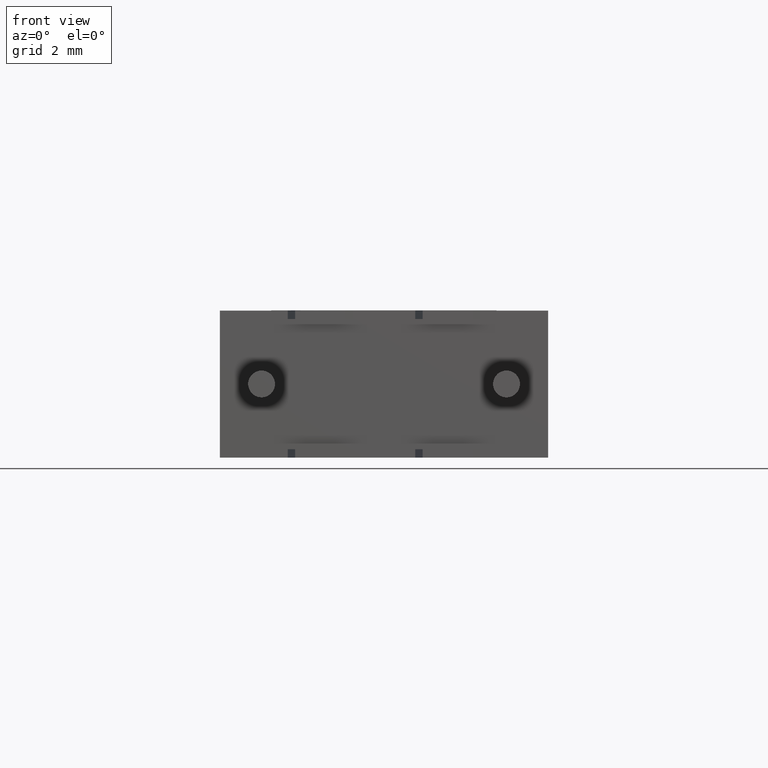
[diagram: clean part render]
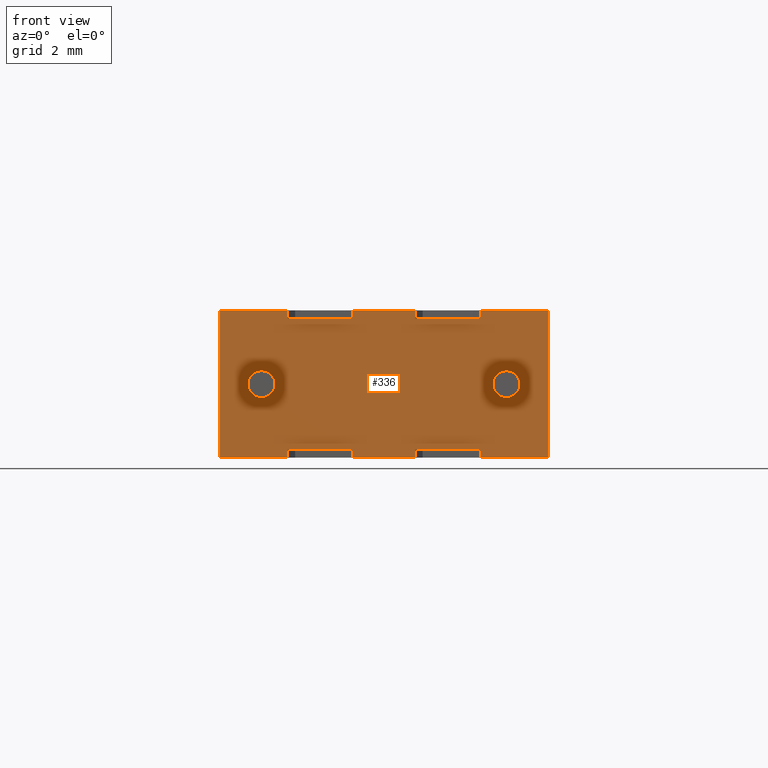
[diagram: same view with one face highlighted and labeled with its STEP entity id]
A machine part, front view. The second image highlights one B-rep face of the part: STEP entity #336.
In plain terms, the highlighted planar face has unit normal (0, 1, 0).
Its self-contained STEP definition (entity closure, byte-faithful):
#6 = EDGE_CURVE ( 'NONE', #809, #3175, #1949, .T. ) ;
#36 = VECTOR ( 'NONE', #2402, 1000.000000000000000 ) ;
#40 = PLANE ( 'NONE',  #1282 ) ;
#41 = CARTESIAN_POINT ( 'NONE',  ( 0.8499999999999996447, 0.000000000000000000, 1.499999999999999334 ) ) ;
#55 = ORIENTED_EDGE ( 'NONE', *, *, #831, .T. ) ;
#61 = EDGE_LOOP ( 'NONE', ( #1907, #3003 ) ) ;
#64 = CARTESIAN_POINT ( 'NONE',  ( 2.711099999999999621, 1.077689183249670778E-16, 3.000000000000000000 ) ) ;
#70 = FACE_BOUND ( 'NONE', #61, .T. ) ;
#71 = CARTESIAN_POINT ( 'NONE',  ( 1.386000000000000121, 0.000000000000000000, 0.1710000000000001519 ) ) ;
#84 = VECTOR ( 'NONE', #475, 1000.000000000000000 ) ;
#91 = ORIENTED_EDGE ( 'NONE', *, *, #2677, .T. ) ;
#104 = EDGE_CURVE ( 'NONE', #418, #2329, #3045, .T. ) ;
#128 = ORIENTED_EDGE ( 'NONE', *, *, #2525, .T. ) ;
#137 = VECTOR ( 'NONE', #2435, 1000.000000000000000 ) ;
#164 = CARTESIAN_POINT ( 'NONE',  ( 0.000000000000000000, 0.000000000000000000, 3.000000000000000000 ) ) ;
#172 = LINE ( 'NONE', #2167, #36 ) ;
#183 = ORIENTED_EDGE ( 'NONE', *, *, #739, .F. ) ;
#196 = ORIENTED_EDGE ( 'NONE', *, *, #6, .T. ) ;
#197 = VECTOR ( 'NONE', #2535, 1000.000000000000000 ) ;
#207 = CARTESIAN_POINT ( 'NONE',  ( 6.700000000000000178, 0.000000000000000000, 3.000000000000000000 ) ) ;
#210 = VECTOR ( 'NONE', #1781, 1000.000000000000000 ) ;
#220 = LINE ( 'NONE', #3182, #683 ) ;
#241 = CARTESIAN_POINT ( 'NONE',  ( 0.000000000000000000, 0.000000000000000000, 3.000000000000000000 ) ) ;
#253 = VERTEX_POINT ( 'NONE', #2258 ) ;
#276 = DIRECTION ( 'NONE',  ( 0.000000000000000000, -0.000000000000000000, 1.000000000000000000 ) ) ;
#277 = CARTESIAN_POINT ( 'NONE',  ( 1.386000000000000121, 8.486802318091154957E-17, 0.1710000000000000131 ) ) ;
#287 = CARTESIAN_POINT ( 'NONE',  ( 5.314000000000000057, 8.486802318091154957E-17, 2.828999999999999737 ) ) ;
#288 = EDGE_CURVE ( 'NONE', #2558, #2331, #2469, .T. ) ;
#297 = CARTESIAN_POINT ( 'NONE',  ( 5.314000000000000057, 8.486802318091154957E-17, 0.000000000000000000 ) ) ;
#310 = CARTESIAN_POINT ( 'NONE',  ( 3.988900000000000112, 1.077689183249670778E-16, 2.828999999999999737 ) ) ;
#311 = CARTESIAN_POINT ( 'NONE',  ( 2.711099999999999621, 1.077689183249670778E-16, 0.000000000000000000 ) ) ;
#315 = DIRECTION ( 'NONE',  ( 0.000000000000000000, 0.000000000000000000, 1.000000000000000000 ) ) ;
#324 = VECTOR ( 'NONE', #2252, 1000.000000000000000 ) ;
#331 = CARTESIAN_POINT ( 'NONE',  ( 3.988900000000000112, 1.077689183249670778E-16, 3.000000000000000000 ) ) ;
#336 = ADVANCED_FACE ( 'NONE', ( #2831, #1587, #70 ), #40, .F. ) ;
#337 = ORIENTED_EDGE ( 'NONE', *, *, #637, .T. ) ;
#355 = CARTESIAN_POINT ( 'NONE',  ( 5.314000000000000057, 0.000000000000000000, 0.1710000000000001519 ) ) ;
#360 = EDGE_LOOP ( 'NONE', ( #128, #389 ) ) ;
#365 = VECTOR ( 'NONE', #2995, 1000.000000000000000 ) ;
#367 = VECTOR ( 'NONE', #315, 1000.000000000000000 ) ;
#389 = ORIENTED_EDGE ( 'NONE', *, *, #1654, .T. ) ;
#418 = VERTEX_POINT ( 'NONE', #310 ) ;
#451 = ORIENTED_EDGE ( 'NONE', *, *, #2951, .T. ) ;
#452 = ORIENTED_EDGE ( 'NONE', *, *, #530, .F. ) ;
#475 = DIRECTION ( 'NONE',  ( 1.000000000000000000, 0.000000000000000000, 0.000000000000000000 ) ) ;
#480 = VERTEX_POINT ( 'NONE', #910 ) ;
#489 = CARTESIAN_POINT ( 'NONE',  ( 0.000000000000000000, 0.000000000000000000, 0.000000000000000000 ) ) ;
#497 = DIRECTION ( 'NONE',  ( 0.000000000000000000, 0.000000000000000000, -1.000000000000000000 ) ) ;
#506 = VERTEX_POINT ( 'NONE', #297 ) ;
#529 = EDGE_CURVE ( 'NONE', #480, #2164, #2813, .T. ) ;
#530 = EDGE_CURVE ( 'NONE', #1439, #2331, #1728, .T. ) ;
#534 = CARTESIAN_POINT ( 'NONE',  ( 5.850000000000001421, 0.000000000000000000, 1.499999999999999334 ) ) ;
#541 = ORIENTED_EDGE ( 'NONE', *, *, #1442, .F. ) ;
#567 = VERTEX_POINT ( 'NONE', #733 ) ;
#580 = ORIENTED_EDGE ( 'NONE', *, *, #1101, .T. ) ;
#600 = DIRECTION ( 'NONE',  ( 0.000000000000000000, 0.000000000000000000, -1.000000000000000000 ) ) ;
#606 = CARTESIAN_POINT ( 'NONE',  ( 3.988900000000000112, 1.077689183249670778E-16, 0.1710000000000000131 ) ) ;
#637 = EDGE_CURVE ( 'NONE', #2971, #1316, #1069, .T. ) ;
#680 = VECTOR ( 'NONE', #2045, 1000.000000000000000 ) ;
#683 = VECTOR ( 'NONE', #2921, 1000.000000000000000 ) ;
#688 = AXIS2_PLACEMENT_3D ( 'NONE', #1688, #2687, #2431 ) ;
#705 = DIRECTION ( 'NONE',  ( 1.000000000000000000, -1.728239011701421411E-17, 0.000000000000000000 ) ) ;
#733 = CARTESIAN_POINT ( 'NONE',  ( 1.386000000000000121, 8.486802318091154957E-17, 2.828999999999999737 ) ) ;
#739 = EDGE_CURVE ( 'NONE', #253, #2553, #2900, .T. ) ;
#809 = VERTEX_POINT ( 'NONE', #2263 ) ;
#829 = VECTOR ( 'NONE', #3194, 1000.000000000000000 ) ;
#830 = LINE ( 'NONE', #2795, #210 ) ;
#831 = EDGE_CURVE ( 'NONE', #1432, #567, #1725, .T. ) ;
#852 = DIRECTION ( 'NONE',  ( 0.000000000000000000, 0.000000000000000000, 1.000000000000000000 ) ) ;
#861 = ORIENTED_EDGE ( 'NONE', *, *, #1238, .F. ) ;
#887 = CARTESIAN_POINT ( 'NONE',  ( 0.000000000000000000, 0.000000000000000000, 3.000000000000000000 ) ) ;
#910 = CARTESIAN_POINT ( 'NONE',  ( 0.8499999999999996447, 0.000000000000000000, 1.224999999999999201 ) ) ;
#986 = VECTOR ( 'NONE', #705, 1000.000000000000000 ) ;
#1000 = LINE ( 'NONE', #241, #365 ) ;
#1015 = LINE ( 'NONE', #277, #2193 ) ;
#1019 = CARTESIAN_POINT ( 'NONE',  ( 1.386000000000000121, 8.486802318091154957E-17, 2.828999999999999737 ) ) ;
#1069 = LINE ( 'NONE', #2343, #1767 ) ;
#1081 = ORIENTED_EDGE ( 'NONE', *, *, #1118, .T. ) ;
#1101 = EDGE_CURVE ( 'NONE', #567, #2905, #172, .T. ) ;
#1118 = EDGE_CURVE ( 'NONE', #2855, #2558, #2622, .T. ) ;
#1167 = ORIENTED_EDGE ( 'NONE', *, *, #1245, .F. ) ;
#1171 = CARTESIAN_POINT ( 'NONE',  ( 6.700000000000000178, 0.000000000000000000, 0.000000000000000000 ) ) ;
#1226 = DIRECTION ( 'NONE',  ( 0.000000000000000000, 0.000000000000000000, -1.000000000000000000 ) ) ;
#1230 = VECTOR ( 'NONE', #497, 1000.000000000000000 ) ;
#1238 = EDGE_CURVE ( 'NONE', #1432, #1943, #2722, .T. ) ;
#1245 = EDGE_CURVE ( 'NONE', #1943, #2329, #1000, .T. ) ;
#1248 = CARTESIAN_POINT ( 'NONE',  ( 2.711099999999999621, 1.077689183249670778E-16, 2.828999999999999737 ) ) ;
#1260 = EDGE_CURVE ( 'NONE', #2971, #1439, #1015, .T. ) ;
#1266 = CARTESIAN_POINT ( 'NONE',  ( 0.000000000000000000, 0.000000000000000000, 3.000000000000000000 ) ) ;
#1276 = DIRECTION ( 'NONE',  ( 0.000000000000000000, 0.000000000000000000, -1.000000000000000000 ) ) ;
#1282 = AXIS2_PLACEMENT_3D ( 'NONE', #1327, #2064, #276 ) ;
#1286 = ORIENTED_EDGE ( 'NONE', *, *, #2903, .F. ) ;
#1288 = LINE ( 'NONE', #2793, #2407 ) ;
#1316 = VERTEX_POINT ( 'NONE', #311 ) ;
#1327 = CARTESIAN_POINT ( 'NONE',  ( 0.000000000000000000, 0.000000000000000000, 3.000000000000000000 ) ) ;
#1328 = CARTESIAN_POINT ( 'NONE',  ( 2.711099999999999621, 1.077689183249670778E-16, 2.828999999999999737 ) ) ;
#1356 = EDGE_CURVE ( 'NONE', #2164, #480, #1934, .T. ) ;
#1405 = CIRCLE ( 'NONE', #688, 0.2750000000000000777 ) ;
#1432 = VERTEX_POINT ( 'NONE', #1328 ) ;
#1439 = VERTEX_POINT ( 'NONE', #71 ) ;
#1442 = EDGE_CURVE ( 'NONE', #809, #2604, #2847, .T. ) ;
#1460 = CARTESIAN_POINT ( 'NONE',  ( 6.700000000000000178, 0.000000000000000000, 3.000000000000000000 ) ) ;
#1469 = DIRECTION ( 'NONE',  ( 1.000000000000000000, 0.000000000000000000, 0.000000000000000000 ) ) ;
#1474 = DIRECTION ( 'NONE',  ( -0.000000000000000000, -1.000000000000000000, -0.000000000000000000 ) ) ;
#1587 = FACE_OUTER_BOUND ( 'NONE', #1882, .T. ) ;
#1589 = EDGE_CURVE ( 'NONE', #2039, #253, #2270, .T. ) ;
#1654 = EDGE_CURVE ( 'NONE', #3089, #2185, #2608, .T. ) ;
#1688 = CARTESIAN_POINT ( 'NONE',  ( 5.850000000000001421, 0.000000000000000000, 1.499999999999999334 ) ) ;
#1700 = ORIENTED_EDGE ( 'NONE', *, *, #104, .T. ) ;
#1719 = LINE ( 'NONE', #1266, #2353 ) ;
#1725 = LINE ( 'NONE', #1019, #3127 ) ;
#1728 = LINE ( 'NONE', #2984, #1230 ) ;
#1767 = VECTOR ( 'NONE', #600, 1000.000000000000000 ) ;
#1781 = DIRECTION ( 'NONE',  ( 1.000000000000000000, 0.000000000000000000, 0.000000000000000000 ) ) ;
#1788 = EDGE_CURVE ( 'NONE', #418, #2039, #220, .T. ) ;
#1805 = CARTESIAN_POINT ( 'NONE',  ( 3.988900000000000112, 1.077689183249670778E-16, 2.828999999999999737 ) ) ;
#1811 = VERTEX_POINT ( 'NONE', #1171 ) ;
#1815 = DIRECTION ( 'NONE',  ( -0.000000000000000000, -1.000000000000000000, -0.000000000000000000 ) ) ;
#1858 = ORIENTED_EDGE ( 'NONE', *, *, #288, .T. ) ;
#1882 = EDGE_LOOP ( 'NONE', ( #452, #1976, #337, #91, #541, #196, #2261, #451, #1286, #183, #3207, #2662, #1700, #1167, #861, #55, #580, #2423, #1081, #1858 ) ) ;
#1883 = AXIS2_PLACEMENT_3D ( 'NONE', #534, #2532, #1276 ) ;
#1889 = CARTESIAN_POINT ( 'NONE',  ( 5.314000000000000057, 8.486802318091154957E-17, 2.828999999999999737 ) ) ;
#1907 = ORIENTED_EDGE ( 'NONE', *, *, #1356, .F. ) ;
#1934 = CIRCLE ( 'NONE', #3023, 0.2750000000000000777 ) ;
#1943 = VERTEX_POINT ( 'NONE', #64 ) ;
#1949 = LINE ( 'NONE', #2943, #986 ) ;
#1976 = ORIENTED_EDGE ( 'NONE', *, *, #1260, .F. ) ;
#1979 = AXIS2_PLACEMENT_3D ( 'NONE', #2251, #1474, #2296 ) ;
#1983 = DIRECTION ( 'NONE',  ( -1.000000000000000000, -1.728239011701421411E-17, 0.000000000000000000 ) ) ;
#1994 = CARTESIAN_POINT ( 'NONE',  ( 0.000000000000000000, 0.000000000000000000, 3.000000000000000000 ) ) ;
#2003 = DIRECTION ( 'NONE',  ( 0.000000000000000000, 0.000000000000000000, 1.000000000000000000 ) ) ;
#2004 = CARTESIAN_POINT ( 'NONE',  ( 0.8499999999999996447, 0.000000000000000000, 1.774999999999999467 ) ) ;
#2038 = VECTOR ( 'NONE', #2003, 1000.000000000000000 ) ;
#2039 = VERTEX_POINT ( 'NONE', #1889 ) ;
#2045 = DIRECTION ( 'NONE',  ( 0.000000000000000000, 0.000000000000000000, 1.000000000000000000 ) ) ;
#2064 = DIRECTION ( 'NONE',  ( 0.000000000000000000, 1.000000000000000000, 0.000000000000000000 ) ) ;
#2077 = CARTESIAN_POINT ( 'NONE',  ( 3.988900000000000112, 0.000000000000000000, 0.000000000000000000 ) ) ;
#2113 = CARTESIAN_POINT ( 'NONE',  ( 5.850000000000001421, 0.000000000000000000, 1.224999999999999201 ) ) ;
#2164 = VERTEX_POINT ( 'NONE', #2004 ) ;
#2167 = CARTESIAN_POINT ( 'NONE',  ( 1.386000000000000121, 8.486802318091154957E-17, 2.828999999999999737 ) ) ;
#2185 = VERTEX_POINT ( 'NONE', #2521 ) ;
#2191 = EDGE_CURVE ( 'NONE', #2855, #2905, #1719, .T. ) ;
#2193 = VECTOR ( 'NONE', #1983, 1000.000000000000000 ) ;
#2196 = LINE ( 'NONE', #3189, #2931 ) ;
#2251 = CARTESIAN_POINT ( 'NONE',  ( 0.8499999999999996447, 0.000000000000000000, 1.499999999999999334 ) ) ;
#2252 = DIRECTION ( 'NONE',  ( -0.000000000000000000, -0.000000000000000000, -1.000000000000000000 ) ) ;
#2258 = CARTESIAN_POINT ( 'NONE',  ( 5.314000000000000945, 1.084202172485504434E-16, 3.000000000000000000 ) ) ;
#2261 = ORIENTED_EDGE ( 'NONE', *, *, #2528, .T. ) ;
#2263 = CARTESIAN_POINT ( 'NONE',  ( 3.988900000000000112, 0.000000000000000000, 0.1710000000000001519 ) ) ;
#2270 = LINE ( 'NONE', #287, #680 ) ;
#2296 = DIRECTION ( 'NONE',  ( 0.000000000000000000, 0.000000000000000000, 1.000000000000000000 ) ) ;
#2329 = VERTEX_POINT ( 'NONE', #331 ) ;
#2331 = VERTEX_POINT ( 'NONE', #2849 ) ;
#2343 = CARTESIAN_POINT ( 'NONE',  ( 2.711099999999999621, 1.077689183249670778E-16, 0.1710000000000000131 ) ) ;
#2353 = VECTOR ( 'NONE', #1469, 1000.000000000000000 ) ;
#2402 = DIRECTION ( 'NONE',  ( 0.000000000000000000, 0.000000000000000000, 1.000000000000000000 ) ) ;
#2407 = VECTOR ( 'NONE', #3035, 1000.000000000000000 ) ;
#2423 = ORIENTED_EDGE ( 'NONE', *, *, #2191, .F. ) ;
#2431 = DIRECTION ( 'NONE',  ( 0.000000000000000000, 0.000000000000000000, -1.000000000000000000 ) ) ;
#2435 = DIRECTION ( 'NONE',  ( 1.000000000000000000, 0.000000000000000000, 0.000000000000000000 ) ) ;
#2469 = LINE ( 'NONE', #3191, #84 ) ;
#2480 = CARTESIAN_POINT ( 'NONE',  ( 1.386000000000000121, 0.000000000000000000, 3.000000000000000000 ) ) ;
#2490 = DIRECTION ( 'NONE',  ( -1.000000000000000000, -1.728239011701421411E-17, -0.000000000000000000 ) ) ;
#2521 = CARTESIAN_POINT ( 'NONE',  ( 5.850000000000001421, 0.000000000000000000, 1.774999999999999467 ) ) ;
#2525 = EDGE_CURVE ( 'NONE', #2185, #3089, #1405, .T. ) ;
#2528 = EDGE_CURVE ( 'NONE', #3175, #506, #2196, .T. ) ;
#2532 = DIRECTION ( 'NONE',  ( -0.000000000000000000, 1.000000000000000000, -0.000000000000000000 ) ) ;
#2535 = DIRECTION ( 'NONE',  ( 0.000000000000000000, 0.000000000000000000, -1.000000000000000000 ) ) ;
#2553 = VERTEX_POINT ( 'NONE', #207 ) ;
#2558 = VERTEX_POINT ( 'NONE', #489 ) ;
#2604 = VERTEX_POINT ( 'NONE', #2077 ) ;
#2608 = CIRCLE ( 'NONE', #1883, 0.2750000000000000777 ) ;
#2622 = LINE ( 'NONE', #887, #829 ) ;
#2662 = ORIENTED_EDGE ( 'NONE', *, *, #1788, .F. ) ;
#2677 = EDGE_CURVE ( 'NONE', #1316, #2604, #830, .T. ) ;
#2687 = DIRECTION ( 'NONE',  ( -0.000000000000000000, 1.000000000000000000, -0.000000000000000000 ) ) ;
#2709 = LINE ( 'NONE', #1460, #324 ) ;
#2722 = LINE ( 'NONE', #1248, #2038 ) ;
#2793 = CARTESIAN_POINT ( 'NONE',  ( 0.000000000000000000, 0.000000000000000000, 0.000000000000000000 ) ) ;
#2795 = CARTESIAN_POINT ( 'NONE',  ( 0.000000000000000000, 0.000000000000000000, 0.000000000000000000 ) ) ;
#2805 = CARTESIAN_POINT ( 'NONE',  ( 2.711099999999999621, 0.000000000000000000, 0.1710000000000001519 ) ) ;
#2813 = CIRCLE ( 'NONE', #1979, 0.2750000000000000777 ) ;
#2831 = FACE_BOUND ( 'NONE', #360, .T. ) ;
#2847 = LINE ( 'NONE', #606, #197 ) ;
#2849 = CARTESIAN_POINT ( 'NONE',  ( 1.386000000000000343, -2.710505431213761085E-17, 0.000000000000000000 ) ) ;
#2855 = VERTEX_POINT ( 'NONE', #1994 ) ;
#2900 = LINE ( 'NONE', #164, #137 ) ;
#2903 = EDGE_CURVE ( 'NONE', #2553, #1811, #2709, .T. ) ;
#2905 = VERTEX_POINT ( 'NONE', #2480 ) ;
#2921 = DIRECTION ( 'NONE',  ( 1.000000000000000000, -1.728239011701421411E-17, -0.000000000000000000 ) ) ;
#2931 = VECTOR ( 'NONE', #1226, 1000.000000000000000 ) ;
#2943 = CARTESIAN_POINT ( 'NONE',  ( 5.314000000000000057, 8.486802318091154957E-17, 0.1710000000000000131 ) ) ;
#2951 = EDGE_CURVE ( 'NONE', #506, #1811, #1288, .T. ) ;
#2971 = VERTEX_POINT ( 'NONE', #2805 ) ;
#2984 = CARTESIAN_POINT ( 'NONE',  ( 1.386000000000000121, 8.486802318091154957E-17, 0.1710000000000000131 ) ) ;
#2995 = DIRECTION ( 'NONE',  ( 1.000000000000000000, 0.000000000000000000, 0.000000000000000000 ) ) ;
#3003 = ORIENTED_EDGE ( 'NONE', *, *, #529, .F. ) ;
#3023 = AXIS2_PLACEMENT_3D ( 'NONE', #41, #1815, #852 ) ;
#3035 = DIRECTION ( 'NONE',  ( 1.000000000000000000, 0.000000000000000000, 0.000000000000000000 ) ) ;
#3045 = LINE ( 'NONE', #1805, #367 ) ;
#3089 = VERTEX_POINT ( 'NONE', #2113 ) ;
#3127 = VECTOR ( 'NONE', #2490, 1000.000000000000000 ) ;
#3175 = VERTEX_POINT ( 'NONE', #355 ) ;
#3182 = CARTESIAN_POINT ( 'NONE',  ( 5.314000000000000057, 8.486802318091154957E-17, 2.828999999999999737 ) ) ;
#3189 = CARTESIAN_POINT ( 'NONE',  ( 5.314000000000000057, 8.486802318091154957E-17, 0.1710000000000000131 ) ) ;
#3191 = CARTESIAN_POINT ( 'NONE',  ( 0.000000000000000000, 0.000000000000000000, 0.000000000000000000 ) ) ;
#3194 = DIRECTION ( 'NONE',  ( -0.000000000000000000, -0.000000000000000000, -1.000000000000000000 ) ) ;
#3207 = ORIENTED_EDGE ( 'NONE', *, *, #1589, .F. ) ;